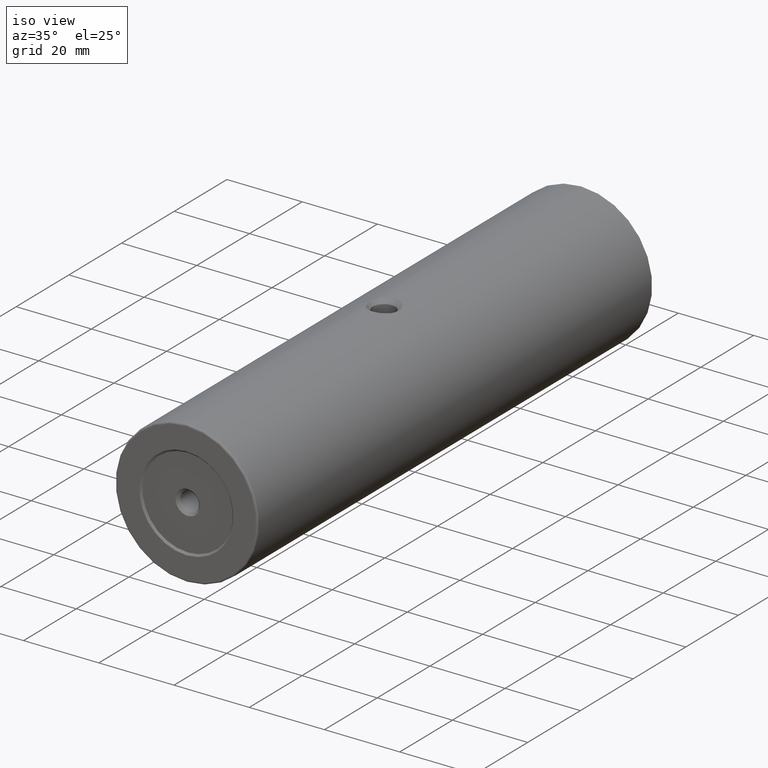
[diagram: clean part render]
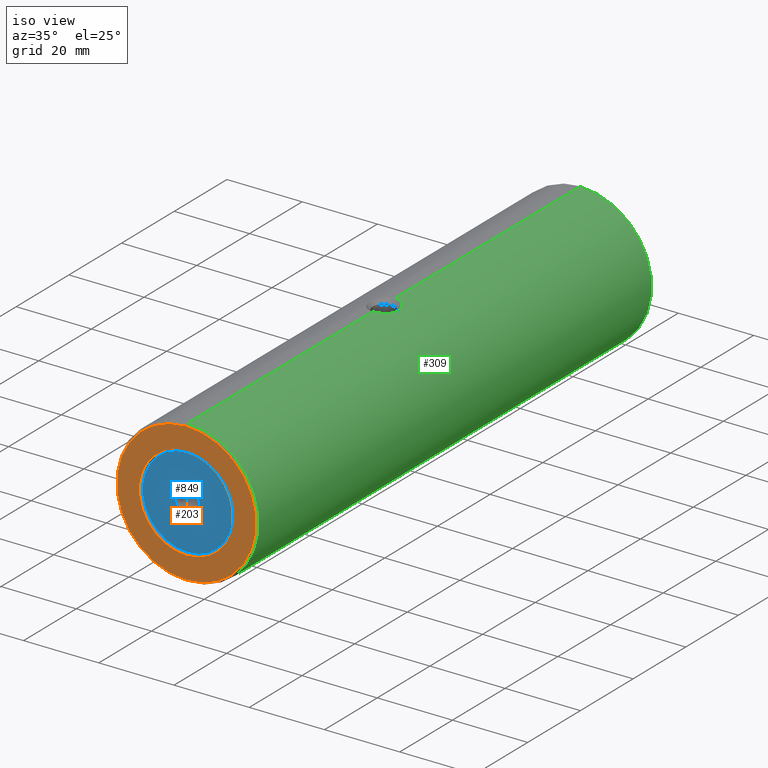
[diagram: same view with three faces highlighted in distinct colors, each labeled with its STEP entity id]
A machine part, iso view with three faces highlighted in distinct colors.
Their STEP definitions:

[orange] entity #203 — the highlighted planar face has unit normal (0, 1, 0).
#9 = EDGE_CURVE ( 'NONE', #182, #593, #115, .T. ) ;
#17 = DIRECTION ( 'NONE',  ( 0.0000000000000000000, 1.000000000000000000, 0.0000000000000000000 ) ) ;
#18 = CIRCLE ( 'NONE', #599, 12.50000000000001066 ) ;
#45 = CIRCLE ( 'NONE', #653, 12.50000000000001066 ) ;
#90 = FACE_BOUND ( 'NONE', #386, .T. ) ;
#111 = AXIS2_PLACEMENT_3D ( 'NONE', #876, #17, #728 ) ;
#115 = CIRCLE ( 'NONE', #145, 18.50000000000001776 ) ;
#145 = AXIS2_PLACEMENT_3D ( 'NONE', #197, #515, #830 ) ;
#155 = VERTEX_POINT ( 'NONE', #734 ) ;
#182 = VERTEX_POINT ( 'NONE', #410 ) ;
#183 = CARTESIAN_POINT ( 'NONE',  ( -85.22679983354142053, -79.26133999167429067, 400.0000000000000000 ) ) ;
#197 = CARTESIAN_POINT ( 'NONE',  ( -85.22679983354142053, -79.26133999167429067, 400.0000000000000000 ) ) ;
#203 = ADVANCED_FACE ( 'NONE', ( #90, #416 ), #249, .F. ) ;
#232 = EDGE_CURVE ( 'NONE', #593, #182, #670, .T. ) ;
#249 = PLANE ( 'NONE',  #111 ) ;
#255 = VERTEX_POINT ( 'NONE', #675 ) ;
#263 = ORIENTED_EDGE ( 'NONE', *, *, #760, .T. ) ;
#339 = EDGE_LOOP ( 'NONE', ( #853, #563 ) ) ;
#386 = EDGE_LOOP ( 'NONE', ( #263, #752 ) ) ;
#410 = CARTESIAN_POINT ( 'NONE',  ( -85.22679983354142053, -79.26133999167429067, 418.5000000000000568 ) ) ;
#416 = FACE_OUTER_BOUND ( 'NONE', #339, .T. ) ;
#515 = DIRECTION ( 'NONE',  ( -0.0000000000000000000, -1.000000000000000000, -0.0000000000000000000 ) ) ;
#536 = CARTESIAN_POINT ( 'NONE',  ( -85.22679983354142053, -79.26133999167429067, 400.0000000000000000 ) ) ;
#563 = ORIENTED_EDGE ( 'NONE', *, *, #232, .T. ) ;
#564 = DIRECTION ( 'NONE',  ( 0.0000000000000000000, 0.0000000000000000000, 1.000000000000000000 ) ) ;
#586 = AXIS2_PLACEMENT_3D ( 'NONE', #654, #805, #648 ) ;
#593 = VERTEX_POINT ( 'NONE', #800 ) ;
#599 = AXIS2_PLACEMENT_3D ( 'NONE', #183, #945, #564 ) ;
#648 = DIRECTION ( 'NONE',  ( 0.0000000000000000000, 0.0000000000000000000, 1.000000000000000000 ) ) ;
#653 = AXIS2_PLACEMENT_3D ( 'NONE', #536, #790, #916 ) ;
#654 = CARTESIAN_POINT ( 'NONE',  ( -85.22679983354142053, -79.26133999167429067, 400.0000000000000000 ) ) ;
#670 = CIRCLE ( 'NONE', #586, 18.50000000000001776 ) ;
#675 = CARTESIAN_POINT ( 'NONE',  ( -85.22679983354142053, -79.26133999167429067, 387.5000000000000000 ) ) ;
#728 = DIRECTION ( 'NONE',  ( 0.0000000000000000000, -0.0000000000000000000, 1.000000000000000000 ) ) ;
#734 = CARTESIAN_POINT ( 'NONE',  ( -85.22679983354142053, -79.26133999167429067, 412.5000000000000568 ) ) ;
#752 = ORIENTED_EDGE ( 'NONE', *, *, #904, .T. ) ;
#760 = EDGE_CURVE ( 'NONE', #155, #255, #45, .T. ) ;
#790 = DIRECTION ( 'NONE',  ( -0.0000000000000000000, 1.000000000000000000, -0.0000000000000000000 ) ) ;
#800 = CARTESIAN_POINT ( 'NONE',  ( -85.22679983354142053, -79.26133999167429067, 381.5000000000000000 ) ) ;
#805 = DIRECTION ( 'NONE',  ( -0.0000000000000000000, -1.000000000000000000, -0.0000000000000000000 ) ) ;
#830 = DIRECTION ( 'NONE',  ( 0.0000000000000000000, 0.0000000000000000000, 1.000000000000000000 ) ) ;
#853 = ORIENTED_EDGE ( 'NONE', *, *, #9, .T. ) ;
#876 = CARTESIAN_POINT ( 'NONE',  ( -85.22679983354142053, -79.26133999167429067, 400.0000000000000000 ) ) ;
#904 = EDGE_CURVE ( 'NONE', #255, #155, #18, .T. ) ;
#916 = DIRECTION ( 'NONE',  ( 0.0000000000000000000, 0.0000000000000000000, 1.000000000000000000 ) ) ;
#945 = DIRECTION ( 'NONE',  ( -0.0000000000000000000, 1.000000000000000000, -0.0000000000000000000 ) ) ;

[blue] entity #849 — the highlighted planar face has unit normal (0, -1, 0).
#5 = AXIS2_PLACEMENT_3D ( 'NONE', #792, #997, #79 ) ;
#79 = DIRECTION ( 'NONE',  ( 0.0000000000000000000, 0.0000000000000000000, -1.000000000000000000 ) ) ;
#137 = ORIENTED_EDGE ( 'NONE', *, *, #437, .T. ) ;
#170 = ORIENTED_EDGE ( 'NONE', *, *, #889, .T. ) ;
#178 = AXIS2_PLACEMENT_3D ( 'NONE', #427, #824, #279 ) ;
#206 = CARTESIAN_POINT ( 'NONE',  ( -85.22679983354142053, -78.76133999167429067, 412.0000000000000568 ) ) ;
#213 = CARTESIAN_POINT ( 'NONE',  ( -85.22679983354142053, -78.76133999167429067, 400.0000000000000000 ) ) ;
#252 = CARTESIAN_POINT ( 'NONE',  ( -85.22679983354142053, -78.76133999167429067, 396.7500000000000000 ) ) ;
#256 = CIRCLE ( 'NONE', #834, 12.00000000000001066 ) ;
#260 = VERTEX_POINT ( 'NONE', #206 ) ;
#279 = DIRECTION ( 'NONE',  ( 0.0000000000000000000, 0.0000000000000000000, -1.000000000000000000 ) ) ;
#291 = FACE_OUTER_BOUND ( 'NONE', #878, .T. ) ;
#295 = EDGE_CURVE ( 'NONE', #260, #826, #835, .T. ) ;
#333 = AXIS2_PLACEMENT_3D ( 'NONE', #213, #453, #379 ) ;
#336 = DIRECTION ( 'NONE',  ( -0.0000000000000000000, 1.000000000000000000, -0.0000000000000000000 ) ) ;
#362 = EDGE_LOOP ( 'NONE', ( #137, #170 ) ) ;
#379 = DIRECTION ( 'NONE',  ( 0.0000000000000000000, 0.0000000000000000000, 1.000000000000000000 ) ) ;
#388 = FACE_BOUND ( 'NONE', #362, .T. ) ;
#425 = DIRECTION ( 'NONE',  ( 0.0000000000000000000, 0.0000000000000000000, -1.000000000000000000 ) ) ;
#427 = CARTESIAN_POINT ( 'NONE',  ( -85.22679983354142053, -78.76133999167429067, 400.0000000000000000 ) ) ;
#437 = EDGE_CURVE ( 'NONE', #909, #498, #582, .T. ) ;
#453 = DIRECTION ( 'NONE',  ( 0.0000000000000000000, -1.000000000000000000, 0.0000000000000000000 ) ) ;
#456 = ORIENTED_EDGE ( 'NONE', *, *, #295, .F. ) ;
#491 = CARTESIAN_POINT ( 'NONE',  ( -85.22679983354142053, -78.76133999167429067, 400.0000000000000000 ) ) ;
#498 = VERTEX_POINT ( 'NONE', #842 ) ;
#500 = DIRECTION ( 'NONE',  ( -0.0000000000000000000, 1.000000000000000000, -0.0000000000000000000 ) ) ;
#512 = AXIS2_PLACEMENT_3D ( 'NONE', #491, #336, #651 ) ;
#582 = CIRCLE ( 'NONE', #5, 3.249999999999975131 ) ;
#611 = PLANE ( 'NONE',  #333 ) ;
#651 = DIRECTION ( 'NONE',  ( 0.0000000000000000000, 0.0000000000000000000, -1.000000000000000000 ) ) ;
#663 = CARTESIAN_POINT ( 'NONE',  ( -85.22679983354142053, -78.76133999167429067, 400.0000000000000000 ) ) ;
#712 = EDGE_CURVE ( 'NONE', #826, #260, #256, .T. ) ;
#741 = ORIENTED_EDGE ( 'NONE', *, *, #712, .F. ) ;
#769 = CARTESIAN_POINT ( 'NONE',  ( -85.22679983354142053, -78.76133999167429067, 388.0000000000000000 ) ) ;
#792 = CARTESIAN_POINT ( 'NONE',  ( -85.22679983354142053, -78.76133999167429067, 400.0000000000000000 ) ) ;
#824 = DIRECTION ( 'NONE',  ( -0.0000000000000000000, 1.000000000000000000, -0.0000000000000000000 ) ) ;
#826 = VERTEX_POINT ( 'NONE', #769 ) ;
#827 = CIRCLE ( 'NONE', #512, 3.249999999999975131 ) ;
#834 = AXIS2_PLACEMENT_3D ( 'NONE', #663, #500, #425 ) ;
#835 = CIRCLE ( 'NONE', #178, 12.00000000000001066 ) ;
#842 = CARTESIAN_POINT ( 'NONE',  ( -85.22679983354142053, -78.76133999167429067, 403.2500000000000568 ) ) ;
#849 = ADVANCED_FACE ( 'NONE', ( #388, #291 ), #611, .T. ) ;
#878 = EDGE_LOOP ( 'NONE', ( #456, #741 ) ) ;
#889 = EDGE_CURVE ( 'NONE', #498, #909, #827, .T. ) ;
#909 = VERTEX_POINT ( 'NONE', #252 ) ;
#997 = DIRECTION ( 'NONE',  ( -0.0000000000000000000, 1.000000000000000000, -0.0000000000000000000 ) ) ;

[green] entity #309 — the highlighted cylindrical surface (partial cylindrical patch) has radius 19 mm, axis along (-0, -1, -0).
#3 = CARTESIAN_POINT ( 'NONE',  ( -81.41341497436532393, -4.261339991674279126, 418.6133848591761648 ) ) ;
#23 = EDGE_CURVE ( 'NONE', #747, #312, #733, .T. ) ;
#29 = CARTESIAN_POINT ( 'NONE',  ( -81.41341497436532393, -4.261339991674277350, 381.3866151408238920 ) ) ;
#39 = CARTESIAN_POINT ( 'NONE',  ( -85.22679983354142053, -78.76133999167429067, 400.0000000000000000 ) ) ;
#46 = DIRECTION ( 'NONE',  ( -0.0000000000000000000, -1.000000000000000000, -0.0000000000000000000 ) ) ;
#51 = VERTEX_POINT ( 'NONE', #852 ) ;
#64 = CARTESIAN_POINT ( 'NONE',  ( -84.69707466841043697, -0.09239770115273915341, 418.9943257409157127 ) ) ;
#67 = EDGE_CURVE ( 'NONE', #312, #658, #1004, .T. ) ;
#70 = CARTESIAN_POINT ( 'NONE',  ( -82.83102515499484753, -0.9863390833895698817, 418.8494842750069438 ) ) ;
#76 = AXIS2_PLACEMENT_3D ( 'NONE', #39, #112, #580 ) ;
#77 = AXIS2_PLACEMENT_3D ( 'NONE', #833, #972, #269 ) ;
#80 = CARTESIAN_POINT ( 'NONE',  ( -81.59285872774556481, -5.558021363143371474, 418.6494685149854149 ) ) ;
#81 = VERTEX_POINT ( 'NONE', #943 ) ;
#83 = CARTESIAN_POINT ( 'NONE',  ( -84.18753268678749180, -0.2111030241652349648, 381.0267308325566091 ) ) ;
#100 = CARTESIAN_POINT ( 'NONE',  ( -81.77187972696631846, -2.468561370532884602, 381.3165358254529451 ) ) ;
#112 = DIRECTION ( 'NONE',  ( 0.0000000000000000000, 1.000000000000000000, 0.0000000000000000000 ) ) ;
#113 = LINE ( 'NONE', #912, #489 ) ;
#118 = CARTESIAN_POINT ( 'NONE',  ( -81.88059113652985843, -6.288202399889226690, 381.2965077447454973 ) ) ;
#119 = EDGE_CURVE ( 'NONE', #687, #658, #643, .T. ) ;
#123 = CARTESIAN_POINT ( 'NONE',  ( -81.59285872774556481, -5.558021363143366145, 381.3505314850146988 ) ) ;
#128 = CARTESIAN_POINT ( 'NONE',  ( -81.77082803723338600, -6.051458313143355028, 381.3167330802414767 ) ) ;
#129 = ORIENTED_EDGE ( 'NONE', *, *, #142, .F. ) ;
#132 = CARTESIAN_POINT ( 'NONE',  ( -82.82757549099136440, -7.533607839044134558, 381.1509220026484286 ) ) ;
#141 = CARTESIAN_POINT ( 'NONE',  ( -81.52508446630257311, -5.300719478809653218, 418.6359698950037682 ) ) ;
#142 = EDGE_CURVE ( 'NONE', #949, #483, #181, .T. ) ;
#153 = CARTESIAN_POINT ( 'NONE',  ( -81.41341497436532393, -4.524701080299158740, 381.3866151408239489 ) ) ;
#159 = CARTESIAN_POINT ( 'NONE',  ( -81.88059113652985843, -6.288202399889226690, 418.7034922552546163 ) ) ;
#174 = CARTESIAN_POINT ( 'NONE',  ( -81.41341497436533814, -3.997586484548954822, 381.3866151408237783 ) ) ;
#181 = LINE ( 'NONE', #809, #948 ) ;
#193 = CARTESIAN_POINT ( 'NONE',  ( -82.63814515825626472, -7.352595677616392322, 381.1763808475635642 ) ) ;
#207 = CARTESIAN_POINT ( 'NONE',  ( -82.63814515825626472, -7.352595677616392322, 418.8236191524364926 ) ) ;
#221 = CARTESIAN_POINT ( 'NONE',  ( -81.41341497436532393, -4.261339991674279126, 418.6133848591761648 ) ) ;
#225 = AXIS2_PLACEMENT_3D ( 'NONE', #730, #645, #812 ) ;
#227 = VERTEX_POINT ( 'NONE', #338 ) ;
#230 = CARTESIAN_POINT ( 'NONE',  ( -82.29671814351611658, -6.957786961682561611, 418.7735023986901979 ) ) ;
#241 = CARTESIAN_POINT ( 'NONE',  ( -81.59279953389886941, -2.964568543362572584, 381.3505402671659681 ) ) ;
#247 = CARTESIAN_POINT ( 'NONE',  ( -83.46511704992532543, -0.5280370949836370453, 381.0803408399271461 ) ) ;
#250 = EDGE_CURVE ( 'NONE', #747, #51, #113, .T. ) ;
#253 = CARTESIAN_POINT ( 'NONE',  ( -83.24199987212081453, -0.6676668308104372063, 381.1028212990075872 ) ) ;
#258 = CARTESIAN_POINT ( 'NONE',  ( -82.83102515499486174, -0.9863390833895689935, 381.1505157249931699 ) ) ;
#269 = DIRECTION ( 'NONE',  ( 0.0000000000000000000, 0.0000000000000000000, -1.000000000000000000 ) ) ;
#280 = CARTESIAN_POINT ( 'NONE',  ( -84.69972560880194123, -8.430702186240790041, 418.9944016194976939 ) ) ;
#285 = CARTESIAN_POINT ( 'NONE',  ( -82.82757549099136440, -7.533607839044134558, 418.8490779973516851 ) ) ;
#289 = CARTESIAN_POINT ( 'NONE',  ( -82.14309753980985818, -6.741247472261910012, 381.2514396459365571 ) ) ;
#299 = CARTESIAN_POINT ( 'NONE',  ( -84.96393248785446417, -0.06133999167429705912, 419.0000000000001705 ) ) ;
#303 = CARTESIAN_POINT ( 'NONE',  ( -81.43586367851925445, -4.785232307264686291, 381.3819744963091694 ) ) ;
#304 = CARTESIAN_POINT ( 'NONE',  ( -81.88335953815429491, -2.229144387579318209, 418.7039841074685000 ) ) ;
#309 = ADVANCED_FACE ( 'NONE', ( #908 ), #897, .T. ) ;
#310 = CARTESIAN_POINT ( 'NONE',  ( -81.52612773688036896, -3.217498801581725854, 418.6361777253471814 ) ) ;
#312 = VERTEX_POINT ( 'NONE', #745 ) ;
#315 = CARTESIAN_POINT ( 'NONE',  ( -82.29571650229409840, -1.565921010254242685, 418.7733634629371409 ) ) ;
#332 = CARTESIAN_POINT ( 'NONE',  ( -82.14497683168241338, -1.778754477084883101, 381.2511338613114162 ) ) ;
#337 = CARTESIAN_POINT ( 'NONE',  ( -81.88335953815429491, -2.229144387579305775, 381.2960158925316705 ) ) ;
#338 = CARTESIAN_POINT ( 'NONE',  ( -85.22679983354142053, -8.461339991674268646, 381.0000000000000000 ) ) ;
#344 = CARTESIAN_POINT ( 'NONE',  ( -82.64087668775829343, -1.167056617506569971, 381.1759880288403792 ) ) ;
#346 = EDGE_CURVE ( 'NONE', #227, #748, #440, .T. ) ;
#354 = CARTESIAN_POINT ( 'NONE',  ( -85.22679983354142053, -0.06133999167429880772, 419.0000000000000568 ) ) ;
#355 = CARTESIAN_POINT ( 'NONE',  ( -84.69972560880194123, -8.430702186240790041, 381.0055983805024198 ) ) ;
#367 = CARTESIAN_POINT ( 'NONE',  ( -84.18986350246656514, -8.312315706571794749, 418.9733988301109093 ) ) ;
#369 = CARTESIAN_POINT ( 'NONE',  ( -85.22679983354142053, 70.23866000832570933, 419.0000000000000568 ) ) ;
#372 = CARTESIAN_POINT ( 'NONE',  ( -83.93808702169893365, -8.222923423920713404, 381.0422776972831116 ) ) ;
#376 = CARTESIAN_POINT ( 'NONE',  ( -82.14309753980985818, -6.741247472261910012, 418.7485603540634429 ) ) ;
#384 = CARTESIAN_POINT ( 'NONE',  ( -85.22679983354142053, -0.06133999167429880772, 381.0000000000000000 ) ) ;
#405 = DIRECTION ( 'NONE',  ( -0.0000000000000000000, -1.000000000000000000, -0.0000000000000000000 ) ) ;
#409 = CARTESIAN_POINT ( 'NONE',  ( -85.22679983354142053, 70.73866000832570933, 381.0000000000000000 ) ) ;
#411 = CIRCLE ( 'NONE', #225, 19.00000000000001776 ) ;
#420 = CARTESIAN_POINT ( 'NONE',  ( -81.52612773688034054, -3.217498801581724077, 381.3638222746528754 ) ) ;
#431 = CARTESIAN_POINT ( 'NONE',  ( -84.18986350246656514, -8.312315706571794749, 381.0266011698889201 ) ) ;
#436 = ORIENTED_EDGE ( 'NONE', *, *, #969, .T. ) ;
#439 = CARTESIAN_POINT ( 'NONE',  ( -81.41341497436532393, -4.261339991674277350, 381.3866151408238920 ) ) ;
#440 = B_SPLINE_CURVE_WITH_KNOTS ( 'NONE', 3,
 ( #585, #985, #355, #431, #372, #686, #839, #132, #193, #519, #289, #118, #128, #123, #755, #303, #153, #472 ),
 .UNSPECIFIED., .F., .F.,
 ( 4, 2, 2, 2, 2, 2, 2, 2, 4 ),
 ( 0.003733624680294762854, 0.004520577988407363350, 0.005307531296519963845, 0.006094484604632565208, 0.006881437912745166571, 0.007668391220857769669, 0.008455344528970371032, 0.009242297837082972395, 0.01002925114519557549 ),
 .UNSPECIFIED. ) ;
#452 = B_SPLINE_CURVE_WITH_KNOTS ( 'NONE', 3,
 ( #29, #174, #797, #420, #241, #100, #337, #332, #739, #344, #258, #253, #247, #946, #83, #659, #882, #637 ),
 .UNSPECIFIED., .F., .F.,
 ( 4, 2, 2, 2, 2, 2, 2, 2, 4 ),
 ( 0.01002925114519557549, 0.01081737704504791807, 0.01160550294490026065, 0.01239362884475260496, 0.01318175474460494753, 0.01396988064445729011, 0.01475800654430963268, 0.01554613244416197526, 0.01633425834401431784 ),
 .UNSPECIFIED. ) ;
#461 = CARTESIAN_POINT ( 'NONE',  ( -81.59279953389886941, -2.964568543362574360, 418.6494597328340888 ) ) ;
#472 = CARTESIAN_POINT ( 'NONE',  ( -81.41341497436532393, -4.261339991674277350, 381.3866151408238920 ) ) ;
#475 = ORIENTED_EDGE ( 'NONE', *, *, #526, .T. ) ;
#477 = CARTESIAN_POINT ( 'NONE',  ( -81.43639937781144056, -3.732814026306843225, 418.6181352063767918 ) ) ;
#483 = VERTEX_POINT ( 'NONE', #384 ) ;
#489 = VECTOR ( 'NONE', #46, 1000.000000000000000 ) ;
#501 = CARTESIAN_POINT ( 'NONE',  ( -85.22679983354142053, 70.73866000832570933, 419.0000000000000568 ) ) ;
#519 = CARTESIAN_POINT ( 'NONE',  ( -82.29671814351611658, -6.957786961682561611, 381.2264976013096884 ) ) ;
#526 = EDGE_CURVE ( 'NONE', #748, #483, #452, .T. ) ;
#560 = EDGE_CURVE ( 'NONE', #227, #81, #961, .T. ) ;
#580 = DIRECTION ( 'NONE',  ( 0.0000000000000000000, 0.0000000000000000000, 1.000000000000000000 ) ) ;
#585 = CARTESIAN_POINT ( 'NONE',  ( -85.22679983354142053, -8.461339991674268646, 381.0000000000000000 ) ) ;
#604 = CIRCLE ( 'NONE', #76, 19.00000000000001776 ) ;
#609 = CARTESIAN_POINT ( 'NONE',  ( -84.96243902164792416, -8.461339991674275751, 419.0000000000001137 ) ) ;
#616 = CARTESIAN_POINT ( 'NONE',  ( -81.41341497436532393, -4.524701080299160516, 418.6133848591761648 ) ) ;
#622 = CARTESIAN_POINT ( 'NONE',  ( -82.14497683168238495, -1.778754477084894647, 418.7488661386886406 ) ) ;
#623 = EDGE_CURVE ( 'NONE', #51, #81, #604, .T. ) ;
#632 = CARTESIAN_POINT ( 'NONE',  ( -83.94119362236200743, -0.2983445582111095007, 418.9579599544148323 ) ) ;
#637 = CARTESIAN_POINT ( 'NONE',  ( -85.22679983354142053, -0.06133999167429880772, 381.0000000000000000 ) ) ;
#643 = LINE ( 'NONE', #501, #691 ) ;
#645 = DIRECTION ( 'NONE',  ( -0.0000000000000000000, -1.000000000000000000, -0.0000000000000000000 ) ) ;
#658 = VERTEX_POINT ( 'NONE', #354 ) ;
#659 = CARTESIAN_POINT ( 'NONE',  ( -84.69707466841040855, -0.09239770115273913953, 381.0056742590844578 ) ) ;
#681 = CARTESIAN_POINT ( 'NONE',  ( -83.46626106639050136, -7.995107640163255702, 418.9197388689088370 ) ) ;
#686 = CARTESIAN_POINT ( 'NONE',  ( -83.46626106639050136, -7.995107640163255702, 381.0802611310913903 ) ) ;
#687 = VERTEX_POINT ( 'NONE', #369 ) ;
#691 = VECTOR ( 'NONE', #718, 1000.000000000000000 ) ;
#695 = CARTESIAN_POINT ( 'NONE',  ( -84.18753268678747759, -0.2111030241652349926, 418.9732691674435046 ) ) ;
#702 = ORIENTED_EDGE ( 'NONE', *, *, #119, .T. ) ;
#718 = DIRECTION ( 'NONE',  ( -0.0000000000000000000, -1.000000000000000000, -0.0000000000000000000 ) ) ;
#730 = CARTESIAN_POINT ( 'NONE',  ( -85.22679983354142053, 70.23866000832570933, 400.0000000000000000 ) ) ;
#733 = B_SPLINE_CURVE_WITH_KNOTS ( 'NONE', 3,
 ( #983, #609, #280, #367, #836, #681, #987, #285, #207, #230, #376, #159, #793, #80, #141, #1006, #616, #221 ),
 .UNSPECIFIED., .F., .F.,
 ( 4, 2, 2, 2, 2, 2, 2, 2, 4 ),
 ( 0.003733624680294762854, 0.004520577988407363350, 0.005307531296519963845, 0.006094484604632564341, 0.006881437912745166571, 0.007668391220857767934, 0.008455344528970369297, 0.009242297837082972395, 0.01002925114519557376 ),
 .UNSPECIFIED. ) ;
#739 = CARTESIAN_POINT ( 'NONE',  ( -82.29571650229409840, -1.565921010254241796, 381.2266365370629160 ) ) ;
#745 = CARTESIAN_POINT ( 'NONE',  ( -81.41341497436532393, -4.261339991674279126, 418.6133848591761648 ) ) ;
#747 = VERTEX_POINT ( 'NONE', #832 ) ;
#748 = VERTEX_POINT ( 'NONE', #439 ) ;
#755 = CARTESIAN_POINT ( 'NONE',  ( -81.52508446630257311, -5.300719478809650553, 381.3640301049963455 ) ) ;
#757 = ORIENTED_EDGE ( 'NONE', *, *, #623, .T. ) ;
#758 = ORIENTED_EDGE ( 'NONE', *, *, #560, .F. ) ;
#782 = CARTESIAN_POINT ( 'NONE',  ( -81.77187972696634688, -2.468561370532886379, 418.6834641745472823 ) ) ;
#793 = CARTESIAN_POINT ( 'NONE',  ( -81.77082803723338600, -6.051458313143361245, 418.6832669197586370 ) ) ;
#797 = CARTESIAN_POINT ( 'NONE',  ( -81.43639937781146898, -3.732814026306841892, 381.3818647936232082 ) ) ;
#806 = ORIENTED_EDGE ( 'NONE', *, *, #23, .F. ) ;
#807 = CARTESIAN_POINT ( 'NONE',  ( -85.22679983354142053, 70.23866000832570933, 381.0000000000000000 ) ) ;
#809 = CARTESIAN_POINT ( 'NONE',  ( -85.22679983354142053, 70.73866000832570933, 381.0000000000000000 ) ) ;
#811 = ORIENTED_EDGE ( 'NONE', *, *, #250, .T. ) ;
#812 = DIRECTION ( 'NONE',  ( 0.0000000000000000000, 0.0000000000000000000, 1.000000000000000000 ) ) ;
#832 = CARTESIAN_POINT ( 'NONE',  ( -85.22679983354142053, -8.461339991674268646, 419.0000000000000568 ) ) ;
#833 = CARTESIAN_POINT ( 'NONE',  ( -85.22679983354142053, 70.73866000832570933, 400.0000000000000000 ) ) ;
#836 = CARTESIAN_POINT ( 'NONE',  ( -83.93808702169893365, -8.222923423920713404, 418.9577223027167747 ) ) ;
#839 = CARTESIAN_POINT ( 'NONE',  ( -83.24438980785724596, -7.856924346119599889, 381.1025380199827737 ) ) ;
#847 = CARTESIAN_POINT ( 'NONE',  ( -81.41341497436532393, -3.997586484548957486, 418.6133848591761648 ) ) ;
#852 = CARTESIAN_POINT ( 'NONE',  ( -85.22679983354142053, -78.76133999167429067, 419.0000000000000568 ) ) ;
#856 = CARTESIAN_POINT ( 'NONE',  ( -83.46511704992533964, -0.5280370949836369343, 418.9196591600729107 ) ) ;
#863 = ORIENTED_EDGE ( 'NONE', *, *, #67, .F. ) ;
#867 = CARTESIAN_POINT ( 'NONE',  ( -83.24199987212080032, -0.6676668308104377614, 418.8971787009924697 ) ) ;
#870 = VECTOR ( 'NONE', #872, 1000.000000000000000 ) ;
#872 = DIRECTION ( 'NONE',  ( -0.0000000000000000000, -1.000000000000000000, -0.0000000000000000000 ) ) ;
#882 = CARTESIAN_POINT ( 'NONE',  ( -84.96393248785444996, -0.06133999167429707300, 381.0000000000000000 ) ) ;
#897 = CYLINDRICAL_SURFACE ( 'NONE', #77, 19.00000000000001776 ) ;
#908 = FACE_OUTER_BOUND ( 'NONE', #920, .T. ) ;
#912 = CARTESIAN_POINT ( 'NONE',  ( -85.22679983354142053, 70.73866000832570933, 419.0000000000000568 ) ) ;
#920 = EDGE_LOOP ( 'NONE', ( #436, #702, #863, #806, #811, #757, #758, #944, #475, #129 ) ) ;
#938 = CARTESIAN_POINT ( 'NONE',  ( -82.64087668775827922, -1.167056617506570415, 418.8240119711596208 ) ) ;
#943 = CARTESIAN_POINT ( 'NONE',  ( -85.22679983354142053, -78.76133999167429067, 381.0000000000000000 ) ) ;
#944 = ORIENTED_EDGE ( 'NONE', *, *, #346, .T. ) ;
#946 = CARTESIAN_POINT ( 'NONE',  ( -83.94119362236200743, -0.2983445582111096117, 381.0420400455853382 ) ) ;
#948 = VECTOR ( 'NONE', #405, 1000.000000000000000 ) ;
#949 = VERTEX_POINT ( 'NONE', #807 ) ;
#961 = LINE ( 'NONE', #409, #870 ) ;
#969 = EDGE_CURVE ( 'NONE', #949, #687, #411, .T. ) ;
#972 = DIRECTION ( 'NONE',  ( -0.0000000000000000000, -1.000000000000000000, -0.0000000000000000000 ) ) ;
#983 = CARTESIAN_POINT ( 'NONE',  ( -85.22679983354142053, -8.461339991674268646, 419.0000000000000568 ) ) ;
#985 = CARTESIAN_POINT ( 'NONE',  ( -84.96243902164792416, -8.461339991674275751, 381.0000000000000568 ) ) ;
#987 = CARTESIAN_POINT ( 'NONE',  ( -83.24438980785724596, -7.856924346119599889, 418.8974619800173400 ) ) ;
#1004 = B_SPLINE_CURVE_WITH_KNOTS ( 'NONE', 3,
 ( #3, #847, #477, #310, #461, #782, #304, #622, #315, #938, #70, #867, #856, #632, #695, #64, #299, #1012 ),
 .UNSPECIFIED., .F., .F.,
 ( 4, 2, 2, 2, 2, 2, 2, 2, 4 ),
 ( 0.01002925114519557376, 0.01081737704504791807, 0.01160550294490026065, 0.01239362884475260496, 0.01318175474460494753, 0.01396988064445729011, 0.01475800654430963268, 0.01554613244416197526, 0.01633425834401431784 ),
 .UNSPECIFIED. ) ;
#1006 = CARTESIAN_POINT ( 'NONE',  ( -81.43586367851925445, -4.785232307264688068, 418.6180255036908306 ) ) ;
#1012 = CARTESIAN_POINT ( 'NONE',  ( -85.22679983354142053, -0.06133999167429880772, 419.0000000000000568 ) ) ;